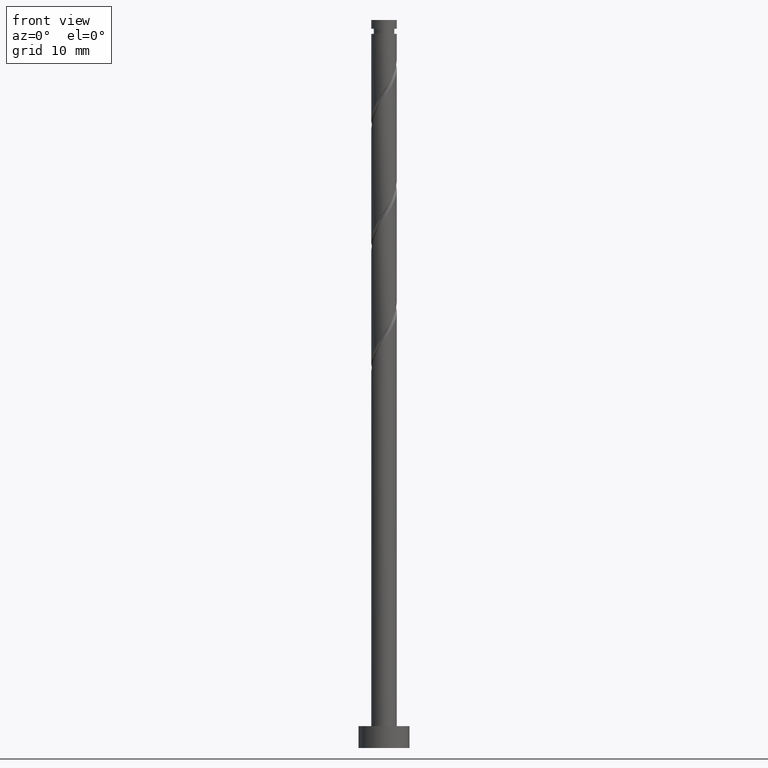
[diagram: clean part render]
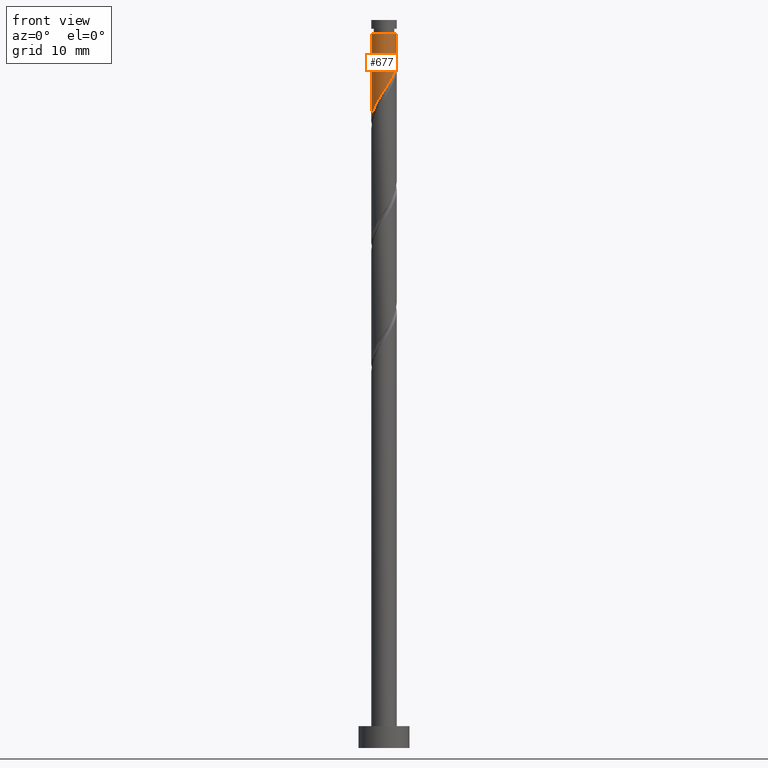
[diagram: same view with one face highlighted and labeled with its STEP entity id]
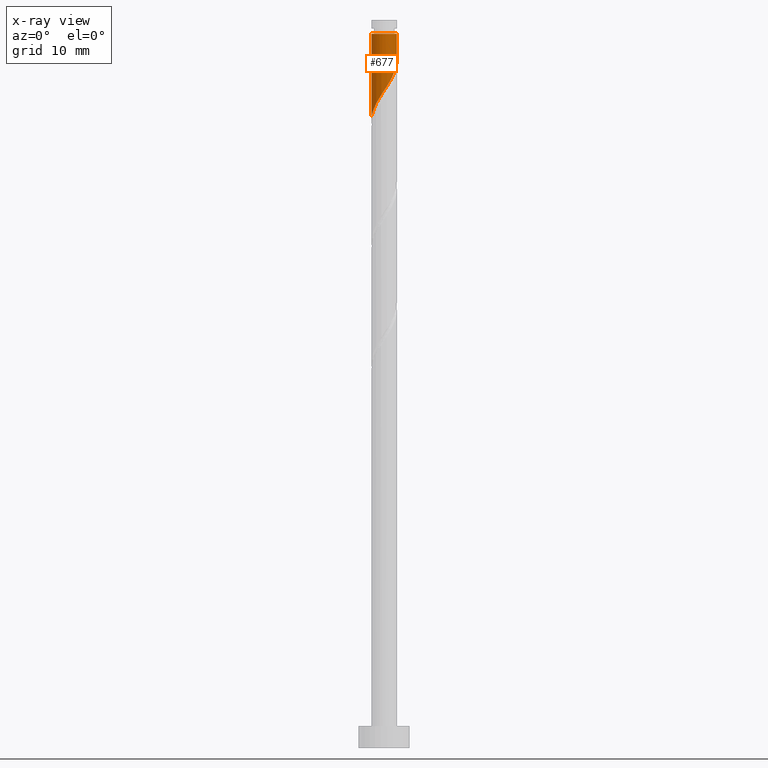
[diagram: x-ray of the same camera — body ghosted, the highlighted face saturated]
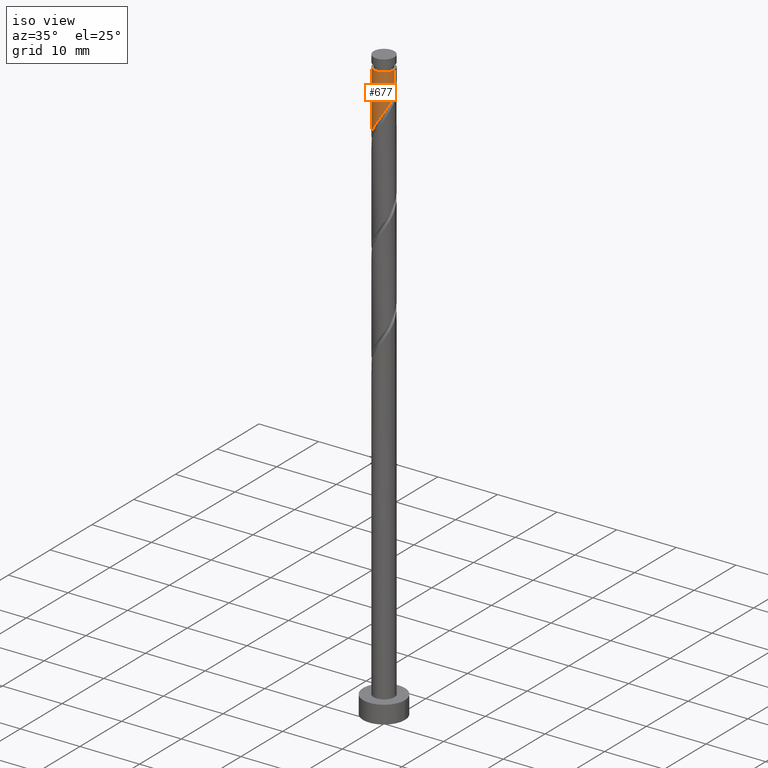
[diagram: same view with one face highlighted and labeled with its STEP entity id]
A machine part, front view. The second image highlights one B-rep face of the part: STEP entity #677.
The next image is the same camera in x-ray: the body ghosted, the highlighted face saturated — about 0% of this face is hidden behind the body in this view.
A second angle (iso view) of the same face is appended — the face is thin or edge-on in the first view.
In plain terms, the highlighted cylindrical surface (edge-blend (fillet) strip) has radius 1.75 mm, axis along (-0, -0, -1).
Its self-contained STEP definition (entity closure, byte-faithful):
#101 = ORIENTED_EDGE ( 'NONE', *, *, #548, .T. ) ;
#102 = DIRECTION ( 'NONE',  ( -1.000000000000000000, 0.000000000000000000, 0.000000000000000000 ) ) ;
#107 = CARTESIAN_POINT ( 'NONE',  ( -1.369152359621466974, -1.089918261220982121, 87.92117490720438866 ) ) ;
#130 = CARTESIAN_POINT ( 'NONE',  ( 1.515489524769282781, -0.9279053362006947081, 93.01376749979699810 ) ) ;
#141 = CARTESIAN_POINT ( 'NONE',  ( -1.749999999999999334, -0.2853451506858006304, 86.56713449307731878 ) ) ;
#175 = DIRECTION ( 'NONE',  ( -0.000000000000000000, -0.000000000000000000, -1.000000000000000000 ) ) ;
#211 = VERTEX_POINT ( 'NONE', #356 ) ;
#217 = CARTESIAN_POINT ( 'NONE',  ( 1.749999999999999778, 5.564765038717934781E-16, 94.47054831404498998 ) ) ;
#234 = VERTEX_POINT ( 'NONE', #456 ) ;
#254 = EDGE_CURVE ( 'NONE', #1390, #211, #800, .T. ) ;
#277 = ORIENTED_EDGE ( 'NONE', *, *, #1178, .F. ) ;
#295 = DIRECTION ( 'NONE',  ( -0.000000000000000000, -0.000000000000000000, -1.000000000000000000 ) ) ;
#302 = VERTEX_POINT ( 'NONE', #937 ) ;
#311 = DIRECTION ( 'NONE',  ( -1.000000000000000000, 0.000000000000000000, 0.000000000000000000 ) ) ;
#345 = CARTESIAN_POINT ( 'NONE',  ( 1.749417510755205463, -0.04514834507553609072, 94.40265638868586962 ) ) ;
#356 = CARTESIAN_POINT ( 'NONE',  ( -1.749999999999999778, -1.228729998482013646E-15, 86.13721498071166138 ) ) ;
#361 = CARTESIAN_POINT ( 'NONE',  ( 1.741456639384053151, -0.3536178527455197118, 93.93969342572290770 ) ) ;
#377 = VECTOR ( 'NONE', #1118, 1000.000000000000000 ) ;
#446 = CIRCLE ( 'NONE', #1062, 1.750000000000000222 ) ;
#456 = CARTESIAN_POINT ( 'NONE',  ( 1.750000000000000444, 2.143131898507868297E-16, 98.10636009238956490 ) ) ;
#467 = CARTESIAN_POINT ( 'NONE',  ( 1.628473082076667966, -0.6407615944731063218, 93.47673046275993158 ) ) ;
#548 = EDGE_CURVE ( 'NONE', #234, #1390, #446, .T. ) ;
#572 = CARTESIAN_POINT ( 'NONE',  ( 1.311110765996653438, -1.159089538943247399, 92.55080453683402197 ) ) ;
#587 = CARTESIAN_POINT ( 'NONE',  ( -0.6506463749023349008, -1.653594904280247579, 89.31006379609328860 ) ) ;
#595 = CARTESIAN_POINT ( 'NONE',  ( 1.749999999999999778, -0.02257793008103688506, 94.43653094011264670 ) ) ;
#674 = LINE ( 'NONE', #1138, #1131 ) ;
#677 = ADVANCED_FACE ( 'NONE', ( #867 ), #1229, .T. ) ;
#680 = CARTESIAN_POINT ( 'NONE',  ( -1.659356368983970764, -0.5559104610567531246, 86.99524898127846484 ) ) ;
#688 = CARTESIAN_POINT ( 'NONE',  ( 0.5644862759827012910, -1.684954615668426081, 91.16191564794513624 ) ) ;
#695 = CARTESIAN_POINT ( 'NONE',  ( 1.106732007224024539, -1.390273741685799092, 92.08784157387106006 ) ) ;
#740 = CARTESIAN_POINT ( 'NONE',  ( -1.750000000000000444, 0.000000000000000000, 98.10636009238956490 ) ) ;
#761 = EDGE_CURVE ( 'NONE', #234, #302, #674, .T. ) ;
#800 = LINE ( 'NONE', #1369, #377 ) ;
#804 = ORIENTED_EDGE ( 'NONE', *, *, #761, .F. ) ;
#831 = EDGE_LOOP ( 'NONE', ( #804, #101, #1265, #277 ) ) ;
#867 = FACE_OUTER_BOUND ( 'NONE', #831, .T. ) ;
#927 = CARTESIAN_POINT ( 'NONE',  ( -1.176970363401350861, -1.331336762922906258, 88.38413787016736478 ) ) ;
#937 = CARTESIAN_POINT ( 'NONE',  ( 1.749999999999999778, 5.564765038717934781E-16, 94.47054831404498998 ) ) ;
#1013 = CARTESIAN_POINT ( 'NONE',  ( 0.8356091416033630814, -1.537614178677112253, 91.62487861090808394 ) ) ;
#1021 = CARTESIAN_POINT ( 'NONE',  ( 0.2593207224552011581, -1.730679855694088776, 90.69895268498216012 ) ) ;
#1029 = CARTESIAN_POINT ( 'NONE',  ( -0.3482456029873170489, -1.715000000000000080, 89.77302675905623630 ) ) ;
#1045 = CARTESIAN_POINT ( 'NONE',  ( -1.749999999999999778, -1.228729998482013646E-15, 86.13721498071166138 ) ) ;
#1062 = AXIS2_PLACEMENT_3D ( 'NONE', #1214, #175, #311 ) ;
#1097 = CARTESIAN_POINT ( 'NONE',  ( 0.000000000000000000, 0.000000000000000000, 100.0000000000000000 ) ) ;
#1118 = DIRECTION ( 'NONE',  ( -0.000000000000000000, -0.000000000000000000, -1.000000000000000000 ) ) ;
#1131 = VECTOR ( 'NONE', #1234, 1000.000000000000000 ) ;
#1138 = CARTESIAN_POINT ( 'NONE',  ( 1.750000000000000000, 2.143131898507867804E-16, 100.0000000000000000 ) ) ;
#1143 = CARTESIAN_POINT ( 'NONE',  ( -0.9138083691518429363, -1.492465833601576808, 88.84710083313031248 ) ) ;
#1178 = EDGE_CURVE ( 'NONE', #302, #211, #1370, .T. ) ;
#1214 = CARTESIAN_POINT ( 'NONE',  ( 0.000000000000000000, 0.000000000000000000, 98.10636009238956490 ) ) ;
#1229 = CYLINDRICAL_SURFACE ( 'NONE', #1277, 1.750000000000000000 ) ;
#1234 = DIRECTION ( 'NONE',  ( -0.000000000000000000, -0.000000000000000000, -1.000000000000000000 ) ) ;
#1265 = ORIENTED_EDGE ( 'NONE', *, *, #254, .T. ) ;
#1277 = AXIS2_PLACEMENT_3D ( 'NONE', #1097, #295, #102 ) ;
#1369 = CARTESIAN_POINT ( 'NONE',  ( -1.750000000000000000, 0.000000000000000000, 100.0000000000000000 ) ) ;
#1370 =( BOUNDED_CURVE ( )  B_SPLINE_CURVE ( 2, ( #217, #595, #345, #361, #467, #130, #572, #695, #1013, #688, #1021, #1472, #1029, #587, #1143, #927, #107, #1394, #680, #141, #1045 ),
 .UNSPECIFIED., .F., .T. ) 
 B_SPLINE_CURVE_WITH_KNOTS ( ( 3, 2, 2, 2, 2, 2, 2, 2, 2, 2, 3 ),
 ( 0.3045248053855290626, 0.3055555555555555802, 0.3194444444444444198, 0.3333333333333333148, 0.3472222222222222099, 0.3611111111111111049, 0.3750000000000000000, 0.3888888888888888951, 0.4027777777777777901, 0.4166666666666666852, 0.4295248053855290071 ),
 .UNSPECIFIED. ) 
 CURVE ( )  GEOMETRIC_REPRESENTATION_ITEM ( )  RATIONAL_B_SPLINE_CURVE ( ( 0.9071930855141210337, 0.9080659294509687562, 0.9090909090909088386, 0.8952797754656434126, 0.9090909090909088386, 0.8952797754656434126, 0.9090909090909088386, 0.8952797754656434126, 0.9090909090909088386, 0.8952797754656434126, 0.9090909090909088386, 0.8952797754656434126, 0.9090909090909088386, 0.8952797754656434126, 0.9090909090909088386, 0.8952797754656434126, 0.9090909090909088386, 0.8952797754656434126, 0.9090909090909088386, 0.8963047551055834949, 0.9071930855141210337 ) ) 
 REPRESENTATION_ITEM ( '' )  );
#1390 = VERTEX_POINT ( 'NONE', #740 ) ;
#1394 = CARTESIAN_POINT ( 'NONE',  ( -1.561334355841582866, -0.8484997595190589825, 87.45821194424142675 ) ) ;
#1472 = CARTESIAN_POINT ( 'NONE',  ( -0.04584483107229996024, -1.776405095719752802, 90.23598972201922663 ) ) ;